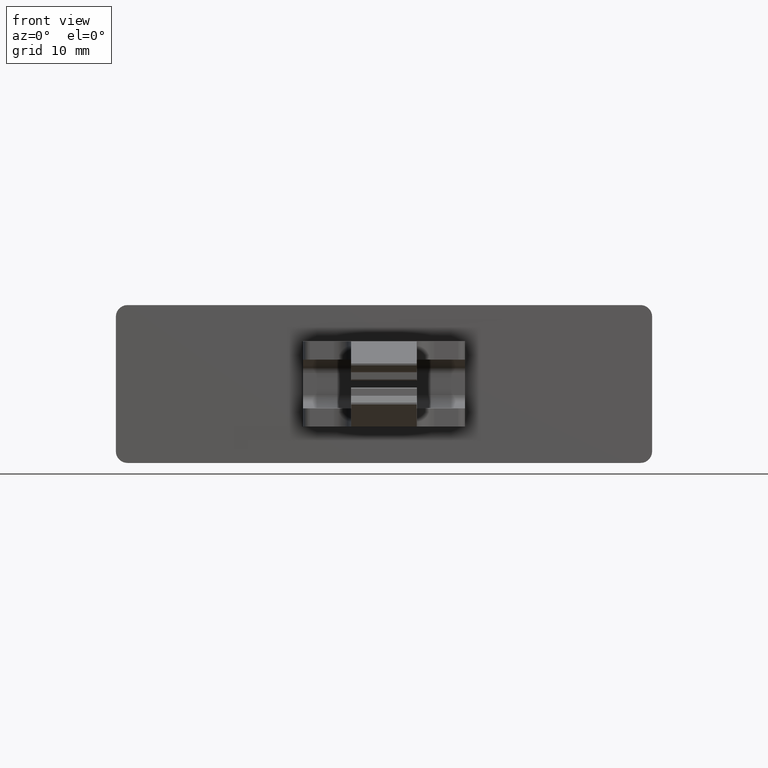
[diagram: clean part render]
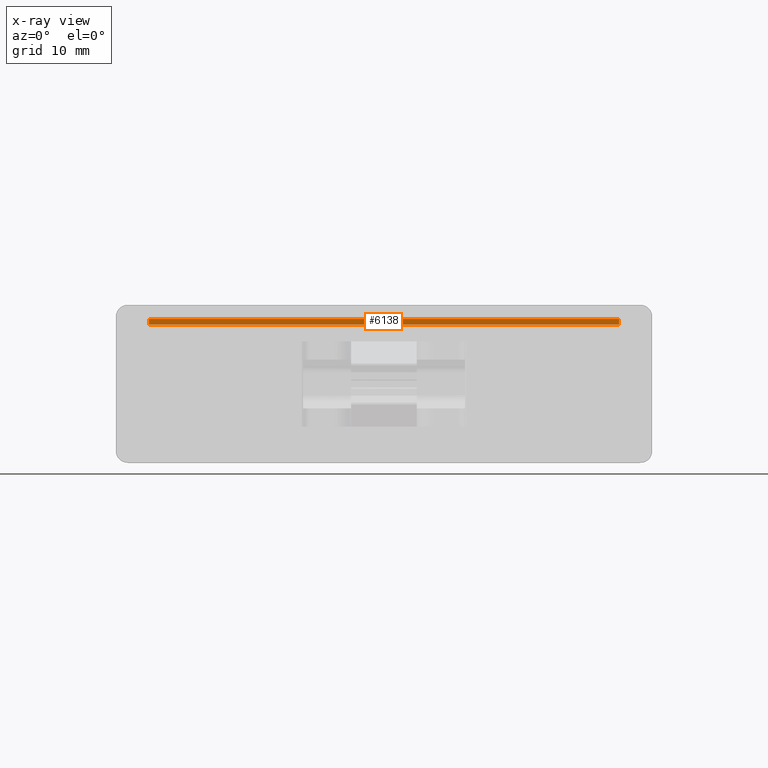
[diagram: x-ray — body ghosted, one internal face saturated and labeled with its STEP entity id]
A machine part, front view, then the same camera in x-ray: the body is ghosted and one INTERNAL B-rep face — a face not visible from any outside direction — is saturated and labeled: STEP entity #6138.
In plain terms, the highlighted planar face has unit normal (-0, 1, 0).
Its self-contained STEP definition (entity closure, byte-faithful):
#274 = PLANE ( 'NONE',  #7301 ) ;
#308 = FACE_OUTER_BOUND ( 'NONE', #4941, .T. ) ;
#309 = DIRECTION ( 'NONE',  ( -6.427622501210999300E-013, 1.000000000000000000, 0.0000000000000000000 ) ) ;
#336 = CARTESIAN_POINT ( 'NONE',  ( -417.3274756952909600, 150.9340649173944400, 20.17606308538600500 ) ) ;
#337 = DIRECTION ( 'NONE',  ( -1.000000000000000000, -6.427622501210999300E-013, 0.0000000000000000000 ) ) ;
#1659 = ORIENTED_EDGE ( 'NONE', *, *, #6374, .F. ) ;
#1712 = ORIENTED_EDGE ( 'NONE', *, *, #6372, .F. ) ;
#1718 = ORIENTED_EDGE ( 'NONE', *, *, #6401, .T. ) ;
#1771 = ORIENTED_EDGE ( 'NONE', *, *, #6396, .T. ) ;
#2166 = CARTESIAN_POINT ( 'NONE',  ( -460.1897416578537400, 150.9340649173680000, 20.17606308538491800 ) ) ;
#2189 = CARTESIAN_POINT ( 'NONE',  ( -419.6897416578556800, 150.9340649173904900, 20.67606308538600500 ) ) ;
#2197 = CARTESIAN_POINT ( 'NONE',  ( -419.6897416578558500, 150.9340649173766700, 20.17606308538491800 ) ) ;
#2227 = CARTESIAN_POINT ( 'NONE',  ( -460.1897416578536300, 150.9340649173669000, 20.67606308538600500 ) ) ;
#4557 = DIRECTION ( 'NONE',  ( 0.0000000000000000000, 0.0000000000000000000, 1.000000000000000000 ) ) ;
#4567 = CARTESIAN_POINT ( 'NONE',  ( -460.1897416578536300, 150.9340649173669000, 20.17606308538600500 ) ) ;
#4568 = CARTESIAN_POINT ( 'NONE',  ( -419.6897416578556800, 150.9340649173929300, 20.17606308538600500 ) ) ;
#4571 = DIRECTION ( 'NONE',  ( -0.0000000000000000000, -0.0000000000000000000, -1.000000000000000000 ) ) ;
#4578 = LINE ( 'NONE', #4567, #7551 ) ;
#4587 = LINE ( 'NONE', #4568, #7561 ) ;
#4606 = LINE ( 'NONE', #4610, #7524 ) ;
#4610 = CARTESIAN_POINT ( 'NONE',  ( -417.3274756952909600, 150.9340649173880400, 20.67606308538600500 ) ) ;
#4775 = DIRECTION ( 'NONE',  ( -1.000000000000000000, -0.0000000000000000000, 0.0000000000000000000 ) ) ;
#4779 = LINE ( 'NONE', #4795, #7598 ) ;
#4795 = CARTESIAN_POINT ( 'NONE',  ( -417.3274756952913500, 150.9340649173685400, 20.17606308538600500 ) ) ;
#4797 = DIRECTION ( 'NONE',  ( 1.000000000000000000, 0.0000000000000000000, -0.0000000000000000000 ) ) ;
#4941 = EDGE_LOOP ( 'NONE', ( #1718, #1712, #1771, #1659 ) ) ;
#5818 = VERTEX_POINT ( 'NONE', #2197 ) ;
#5842 = VERTEX_POINT ( 'NONE', #2189 ) ;
#5850 = VERTEX_POINT ( 'NONE', #2166 ) ;
#5884 = VERTEX_POINT ( 'NONE', #2227 ) ;
#6138 = ADVANCED_FACE ( 'NONE', ( #308 ), #274, .F. ) ;
#6372 = EDGE_CURVE ( 'NONE', #5842, #5818, #4587, .T. ) ;
#6374 = EDGE_CURVE ( 'NONE', #5850, #5884, #4578, .T. ) ;
#6396 = EDGE_CURVE ( 'NONE', #5842, #5884, #4606, .T. ) ;
#6401 = EDGE_CURVE ( 'NONE', #5850, #5818, #4779, .T. ) ;
#7301 = AXIS2_PLACEMENT_3D ( 'NONE', #336, #309, #337 ) ;
#7524 = VECTOR ( 'NONE', #4775, 1000.000000000000000 ) ;
#7551 = VECTOR ( 'NONE', #4557, 1000.000000000000000 ) ;
#7561 = VECTOR ( 'NONE', #4571, 1000.000000000000000 ) ;
#7598 = VECTOR ( 'NONE', #4797, 1000.000000000000000 ) ;